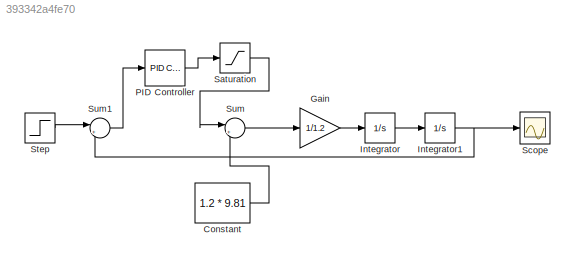
MODEL slx_393342a4fe70
KIND model
CONFIG AbsTol = auto
CONFIG EnableMultiTasking = off
CONFIG FixedStep = auto
CONFIG MaxStep = auto
CONFIG MinStep = auto
CONFIG RelTol = 1e-3
CONFIG SampleTimeConstraint = Unconstrained
CONFIG SolverName = VariableStepAuto
CONFIG StartTime = 0.0
CONFIG StopTime = 15
BLOCK [Constant] Constant
  Value = 1.2 * 9.81
BLOCK [Gain] Gain
  Gain = 1/1.2
BLOCK [Integrator] Integrator
BLOCK [Integrator] Integrator1
  LimitOutput = on
  LowerSaturationLimit = 0
BLOCK [Reference] PID Controller  REF=slpidlib/PID Controller
  LibrarySourceBlock = simulink/Continuous/PID Controller
  SourceBlock = slpidlib/PID Controller
  SourceType = PID 1dof
BLOCK [Saturate] Saturation
  LowerLimit = 0
  UpperLimit = 30
BLOCK [Scope] Scope
  Floating = off
  NumInputPorts = 1
  ScopeSpecificationString = Simulink.scopes.TimeScopeBlockCfg('CurrentConfiguration', extmgr.ConfigurationSet(extmgr.Configuration('Core','General UI',true),extmgr.Configuration('Core','Source UI',true),extmgr.Configuration('Sources','WiredSimulink',true),extmgr.Configuration('Visuals','Time Domain',true,'SerializedDisplays',{struct('MinYLimReal','-1.73565','MaxYLimReal','15.62083','YLabelReal','','MinYLimMag','0.00000','Max...<+1454ch>
BLOCK [Step] Step
  After = 10
  SampleTime = 0
BLOCK [Sum] Sum
  Inputs = |+-
BLOCK [Sum] Sum1
  Inputs = |+-
LINE Constant:1 -> Sum:2
LINE Gain:1 -> Integrator:1
NET Integrator1:1 -> Scope:1, Sum1:2
LINE Integrator:1 -> Integrator1:1
LINE PID Controller:1 -> Saturation:1
LINE Saturation:1 -> Sum:1
LINE Step:1 -> Sum1:1
LINE Sum1:1 -> PID Controller:1
LINE Sum:1 -> Gain:1
note: NET lines group one-source signal fan-out (src -> all destinations, sorted); 1:1 wires keep LINE
